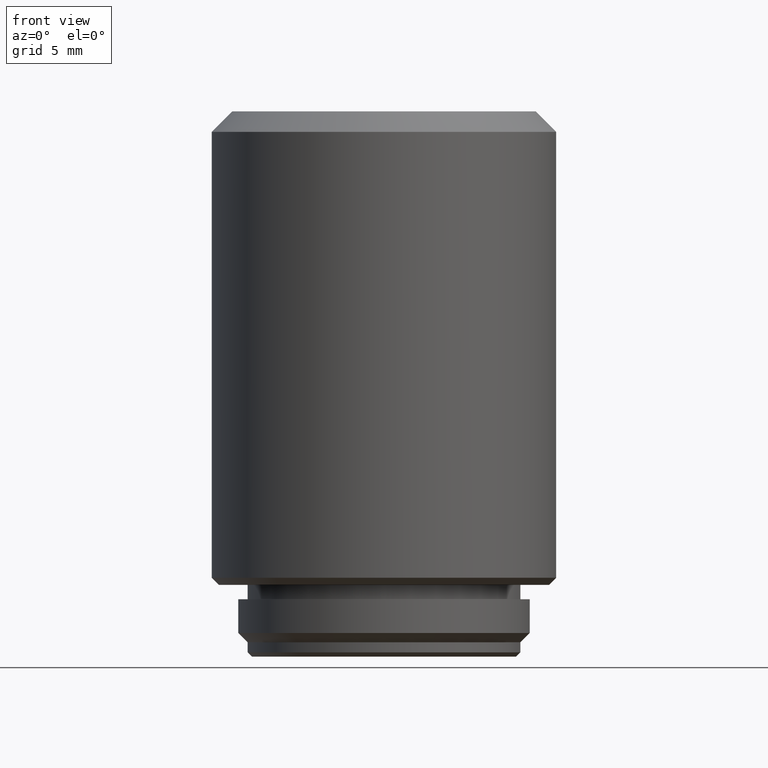
[diagram: clean part render]
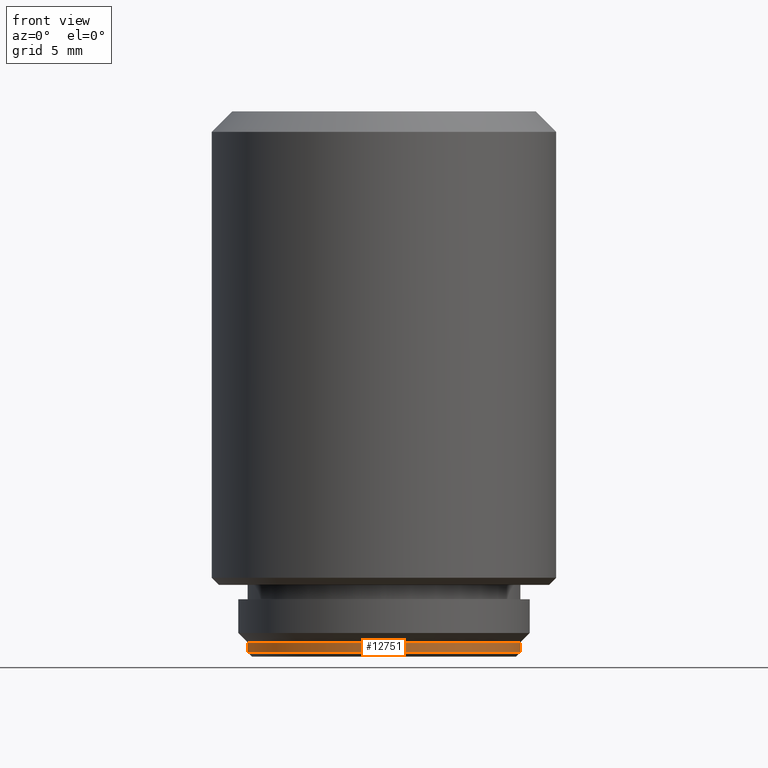
[diagram: same view with one face highlighted and labeled with its STEP entity id]
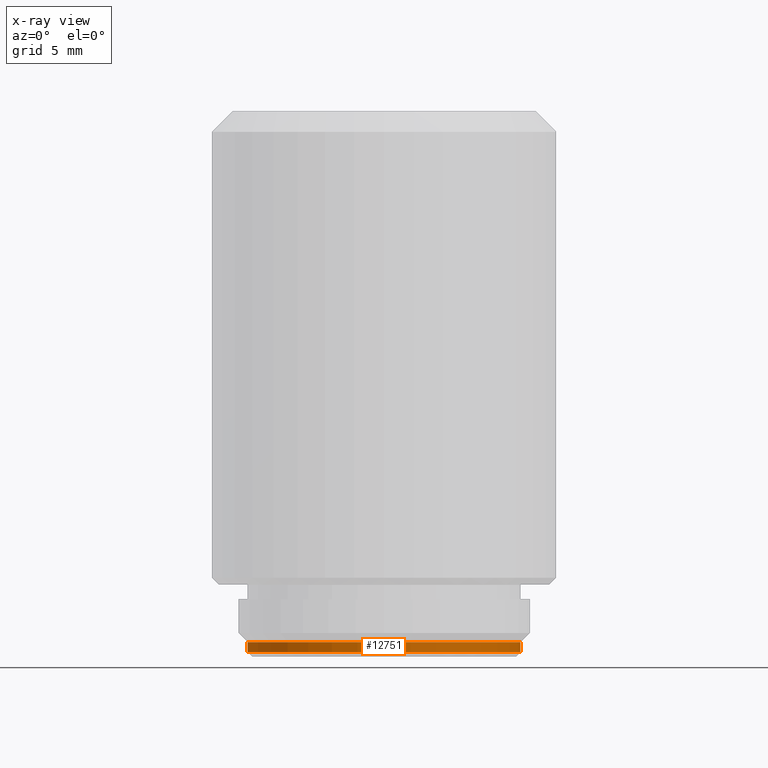
[diagram: x-ray of the same camera — body ghosted, the highlighted face saturated]
A machine part, front view. The second image highlights one B-rep face of the part: STEP entity #12751.
The next image is the same camera in x-ray: the body ghosted, the highlighted face saturated — about 0% of this face is hidden behind the body in this view.
In plain terms, the highlighted cylindrical surface (partial cylindrical patch) has radius 9.5 mm, axis along (0, 0, -1).
Its self-contained STEP definition (entity closure, byte-faithful):
#11 = EDGE_CURVE ( 'NONE', #12663, #4889, #17246, .T. ) ;
#649 = LINE ( 'NONE', #6209, #16308 ) ;
#1022 = ORIENTED_EDGE ( 'NONE', *, *, #11, .T. ) ;
#1062 = EDGE_CURVE ( 'NONE', #15754, #10222, #1339, .T. ) ;
#1339 = CIRCLE ( 'NONE', #14916, 9.500000000000000000 ) ;
#1478 = DIRECTION ( 'NONE',  ( 1.000000000000000000, 0.000000000000000000, 0.000000000000000000 ) ) ;
#1663 = VECTOR ( 'NONE', #3389, 1000.000000000000000 ) ;
#1851 = CARTESIAN_POINT ( 'NONE',  ( 0.000000000000000000, 0.000000000000000000, 1.000000000000000000 ) ) ;
#2214 = DIRECTION ( 'NONE',  ( -1.000000000000000000, 0.000000000000000000, 0.000000000000000000 ) ) ;
#2284 = CARTESIAN_POINT ( 'NONE',  ( 9.500000000000014211, 0.000000000000000000, 0.3000000000000069833 ) ) ;
#2684 = FACE_OUTER_BOUND ( 'NONE', #17562, .T. ) ;
#3031 = CARTESIAN_POINT ( 'NONE',  ( 9.500000000000000000, 1.163414459189985485E-15, 1.000000000000000000 ) ) ;
#3389 = DIRECTION ( 'NONE',  ( 0.000000000000000000, 0.000000000000000000, -1.000000000000000000 ) ) ;
#4280 = DIRECTION ( 'NONE',  ( 0.000000000000000000, 0.000000000000000000, -1.000000000000000000 ) ) ;
#4512 = CYLINDRICAL_SURFACE ( 'NONE', #5560, 9.500000000000000000 ) ;
#4688 = ORIENTED_EDGE ( 'NONE', *, *, #9485, .T. ) ;
#4889 = VERTEX_POINT ( 'NONE', #2284 ) ;
#5363 = CARTESIAN_POINT ( 'NONE',  ( 0.000000000000000000, 0.000000000000000000, 0.3000000000000069833 ) ) ;
#5560 = AXIS2_PLACEMENT_3D ( 'NONE', #11903, #10072, #7894 ) ;
#6209 = CARTESIAN_POINT ( 'NONE',  ( -9.500000000000000000, 0.000000000000000000, 1.000000000000000000 ) ) ;
#6929 = DIRECTION ( 'NONE',  ( 0.000000000000000000, 0.000000000000000000, 1.000000000000000000 ) ) ;
#7894 = DIRECTION ( 'NONE',  ( -1.000000000000000000, 0.000000000000000000, 0.000000000000000000 ) ) ;
#9477 = DIRECTION ( 'NONE',  ( 0.000000000000000000, 0.000000000000000000, -1.000000000000000000 ) ) ;
#9485 = EDGE_CURVE ( 'NONE', #10222, #12663, #649, .T. ) ;
#10006 = CARTESIAN_POINT ( 'NONE',  ( -9.500000000000000000, 0.000000000000000000, 1.000000000000000000 ) ) ;
#10072 = DIRECTION ( 'NONE',  ( 0.000000000000000000, 0.000000000000000000, -1.000000000000000000 ) ) ;
#10222 = VERTEX_POINT ( 'NONE', #10006 ) ;
#10237 = AXIS2_PLACEMENT_3D ( 'NONE', #5363, #6929, #1478 ) ;
#11789 = CARTESIAN_POINT ( 'NONE',  ( -9.500000000000014211, 1.163414459189987260E-15, 0.3000000000000069833 ) ) ;
#11903 = CARTESIAN_POINT ( 'NONE',  ( 0.000000000000000000, 0.000000000000000000, 1.000000000000000000 ) ) ;
#12663 = VERTEX_POINT ( 'NONE', #11789 ) ;
#12751 = ADVANCED_FACE ( 'NONE', ( #2684 ), #4512, .T. ) ;
#13442 = ORIENTED_EDGE ( 'NONE', *, *, #15326, .F. ) ;
#14916 = AXIS2_PLACEMENT_3D ( 'NONE', #1851, #9477, #2214 ) ;
#15326 = EDGE_CURVE ( 'NONE', #15754, #4889, #21609, .T. ) ;
#15754 = VERTEX_POINT ( 'NONE', #23492 ) ;
#16308 = VECTOR ( 'NONE', #4280, 1000.000000000000000 ) ;
#17246 = CIRCLE ( 'NONE', #10237, 9.500000000000000000 ) ;
#17562 = EDGE_LOOP ( 'NONE', ( #13442, #23940, #4688, #1022 ) ) ;
#21609 = LINE ( 'NONE', #3031, #1663 ) ;
#23492 = CARTESIAN_POINT ( 'NONE',  ( 9.500000000000000000, 1.163414459189985485E-15, 1.000000000000000000 ) ) ;
#23940 = ORIENTED_EDGE ( 'NONE', *, *, #1062, .T. ) ;